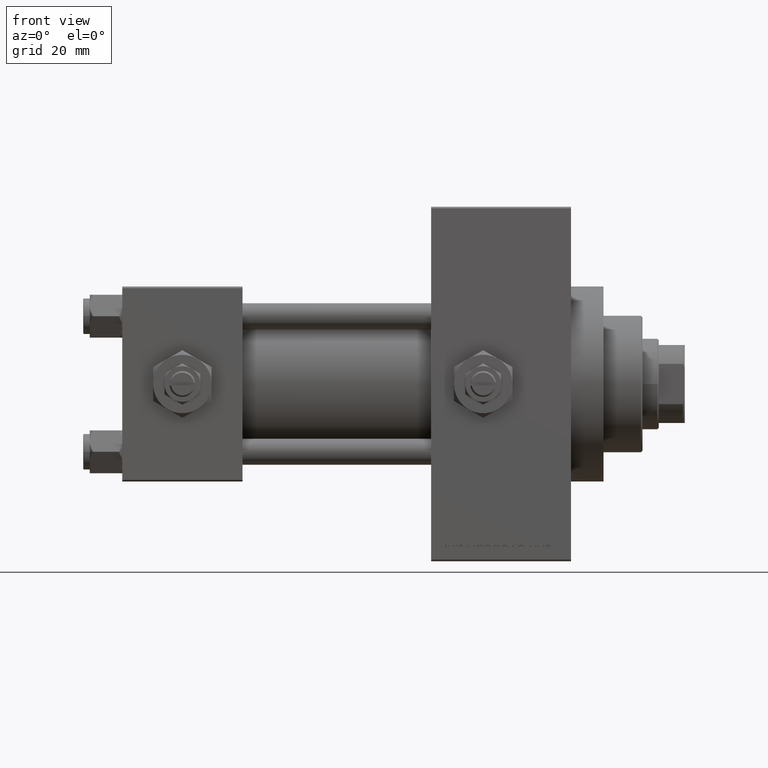
[diagram: clean part render]
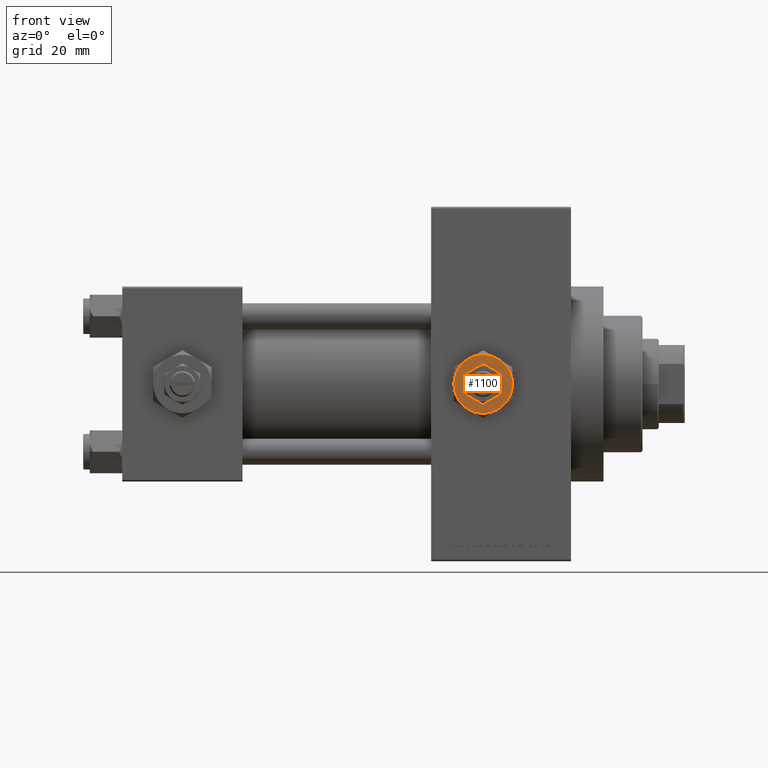
[diagram: same view with one face highlighted and labeled with its STEP entity id]
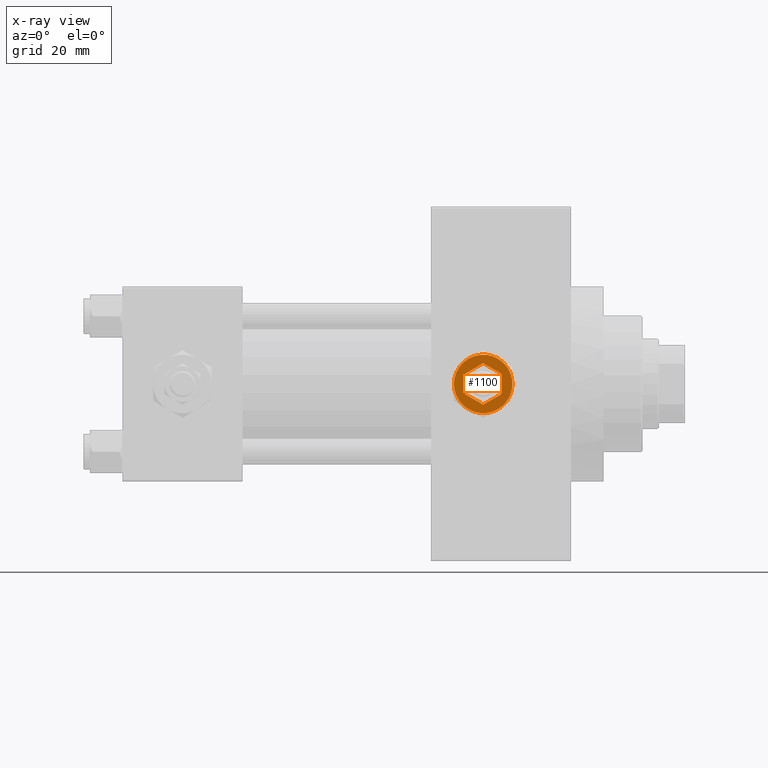
[diagram: x-ray of the same camera — body ghosted, the highlighted face saturated]
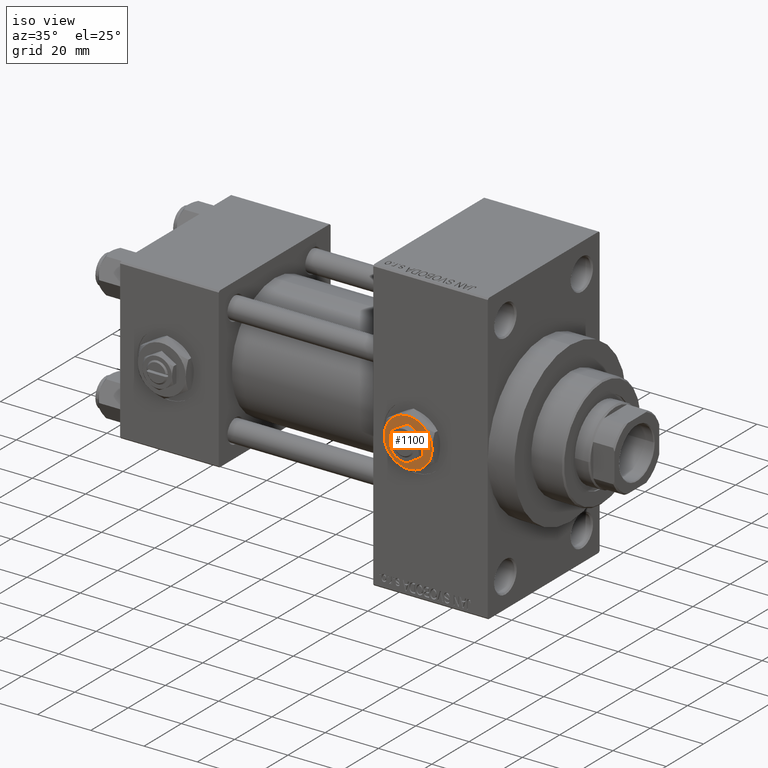
[diagram: same view with one face highlighted and labeled with its STEP entity id]
A machine part, front view. The second image highlights one B-rep face of the part: STEP entity #1100.
The next image is the same camera in x-ray: the body ghosted, the highlighted face saturated — about 0% of this face is hidden behind the body in this view.
A second angle (iso view) of the same face is appended — the face is thin or edge-on in the first view.
In plain terms, the highlighted planar face has unit normal (0, -1, -0).
Its self-contained STEP definition (entity closure, byte-faithful):
#337 = CARTESIAN_POINT ( 'NONE',  ( -4.499999999999998224, -7.794228634059947147, 4.299999999999999822 ) ) ;
#564 = DIRECTION ( 'NONE',  ( 0.000000000000000000, 0.000000000000000000, 1.000000000000000000 ) ) ;
#750 = DIRECTION ( 'NONE',  ( 0.000000000000000000, -1.000000000000000000, 0.000000000000000000 ) ) ;
#787 = CARTESIAN_POINT ( 'NONE',  ( 8.999999999999998224, 0.000000000000000000, 4.299999999999999822 ) ) ;
#1100 = ADVANCED_FACE ( 'NONE', ( #28352, #21622 ), #24615, .T. ) ;
#2686 = DIRECTION ( 'NONE',  ( -0.8660254037844385966, -0.4999999999999999445, 0.000000000000000000 ) ) ;
#3129 = CARTESIAN_POINT ( 'NONE',  ( 0.000000000000000000, 0.000000000000000000, 4.299999999999999822 ) ) ;
#3927 = CIRCLE ( 'NONE', #16676, 9.000000000000000000 ) ;
#4515 = VERTEX_POINT ( 'NONE', #38369 ) ;
#4597 = VECTOR ( 'NONE', #13150, 1000.000000000000000 ) ;
#5563 = VERTEX_POINT ( 'NONE', #787 ) ;
#6018 = VECTOR ( 'NONE', #17920, 1000.000000000000000 ) ;
#6700 = LINE ( 'NONE', #45320, #6018 ) ;
#6715 = CARTESIAN_POINT ( 'NONE',  ( 4.500000000000000000, 7.794228634059947147, 4.299999999999999822 ) ) ;
#7386 = EDGE_CURVE ( 'NONE', #48186, #18106, #47104, .T. ) ;
#7696 = DIRECTION ( 'NONE',  ( 0.000000000000000000, 0.000000000000000000, 1.000000000000000000 ) ) ;
#8359 = CARTESIAN_POINT ( 'NONE',  ( 0.000000000000000000, 0.000000000000000000, 4.299999999999999822 ) ) ;
#10091 = ORIENTED_EDGE ( 'NONE', *, *, #25588, .F. ) ;
#10894 = LINE ( 'NONE', #18395, #13516 ) ;
#11020 = CARTESIAN_POINT ( 'NONE',  ( 5.499999999999999112, 3.175426480542943075, 4.299999999999999822 ) ) ;
#11788 = DIRECTION ( 'NONE',  ( 1.000000000000000000, 0.000000000000000000, 0.000000000000000000 ) ) ;
#12030 = DIRECTION ( 'NONE',  ( 0.000000000000000000, 0.000000000000000000, 1.000000000000000000 ) ) ;
#12191 = DIRECTION ( 'NONE',  ( 1.000000000000000000, 0.000000000000000000, 0.000000000000000000 ) ) ;
#12818 = LINE ( 'NONE', #31253, #35946 ) ;
#13150 = DIRECTION ( 'NONE',  ( -2.731481088613017227E-16, 1.000000000000000000, 0.000000000000000000 ) ) ;
#13516 = VECTOR ( 'NONE', #2686, 1000.000000000000114 ) ;
#13565 = CARTESIAN_POINT ( 'NONE',  ( -5.500000000000000000, 3.175426480542941743, 4.299999999999999822 ) ) ;
#14125 = VECTOR ( 'NONE', #750, 1000.000000000000000 ) ;
#14228 = CIRCLE ( 'NONE', #22192, 9.000000000000000000 ) ;
#15638 = CIRCLE ( 'NONE', #45099, 9.000000000000000000 ) ;
#16252 = CARTESIAN_POINT ( 'NONE',  ( 0.000000000000000000, 0.000000000000000000, 4.299999999999999822 ) ) ;
#16507 = CARTESIAN_POINT ( 'NONE',  ( 0.000000000000000000, 6.350852961085883486, 4.299999999999999822 ) ) ;
#16676 = AXIS2_PLACEMENT_3D ( 'NONE', #42353, #7696, #12191 ) ;
#16782 = CARTESIAN_POINT ( 'NONE',  ( -9.000000000000000000, 0.000000000000000000, 4.299999999999999822 ) ) ;
#17646 = DIRECTION ( 'NONE',  ( 1.000000000000000000, 0.000000000000000000, 0.000000000000000000 ) ) ;
#17920 = DIRECTION ( 'NONE',  ( 0.8660254037844388186, 0.4999999999999997224, 0.000000000000000000 ) ) ;
#17951 = EDGE_CURVE ( 'NONE', #46904, #46488, #48174, .T. ) ;
#18106 = VERTEX_POINT ( 'NONE', #39152 ) ;
#18395 = CARTESIAN_POINT ( 'NONE',  ( 0.000000000000000000, 6.350852961085883486, 4.299999999999999822 ) ) ;
#19368 = DIRECTION ( 'NONE',  ( 0.000000000000000000, 0.000000000000000000, 1.000000000000000000 ) ) ;
#20972 = ORIENTED_EDGE ( 'NONE', *, *, #7386, .F. ) ;
#21370 = DIRECTION ( 'NONE',  ( 1.000000000000000000, 0.000000000000000000, -0.000000000000000000 ) ) ;
#21622 = FACE_BOUND ( 'NONE', #41366, .T. ) ;
#21624 = DIRECTION ( 'NONE',  ( 0.000000000000000000, 0.000000000000000000, 1.000000000000000000 ) ) ;
#22192 = AXIS2_PLACEMENT_3D ( 'NONE', #3129, #33770, #33526 ) ;
#22681 = ORIENTED_EDGE ( 'NONE', *, *, #17951, .F. ) ;
#23351 = VERTEX_POINT ( 'NONE', #6715 ) ;
#23485 = ORIENTED_EDGE ( 'NONE', *, *, #48841, .T. ) ;
#23528 = CARTESIAN_POINT ( 'NONE',  ( 4.499999999999997335, -7.794228634059948035, 4.299999999999999822 ) ) ;
#24615 = PLANE ( 'NONE',  #29921 ) ;
#25017 = ORIENTED_EDGE ( 'NONE', *, *, #38069, .T. ) ;
#25091 = ORIENTED_EDGE ( 'NONE', *, *, #33086, .F. ) ;
#25429 = EDGE_CURVE ( 'NONE', #37116, #5563, #3927, .T. ) ;
#25588 = EDGE_CURVE ( 'NONE', #46488, #48186, #10894, .T. ) ;
#25990 = CARTESIAN_POINT ( 'NONE',  ( 5.500000000000000888, -3.175426480542940855, 4.299999999999999822 ) ) ;
#26232 = DIRECTION ( 'NONE',  ( -0.8660254037844387076, 0.4999999999999999445, 0.000000000000000000 ) ) ;
#26922 = EDGE_CURVE ( 'NONE', #33516, #37116, #43828, .T. ) ;
#27314 = ORIENTED_EDGE ( 'NONE', *, *, #45316, .F. ) ;
#27415 = CARTESIAN_POINT ( 'NONE',  ( -5.500000000000000000, 3.175426480542941743, 4.299999999999999822 ) ) ;
#28352 = FACE_OUTER_BOUND ( 'NONE', #44910, .T. ) ;
#28590 = CARTESIAN_POINT ( 'NONE',  ( -1.343581385738006573E-15, -6.350852961085881709, 4.299999999999999822 ) ) ;
#28661 = CIRCLE ( 'NONE', #47759, 9.000000000000000000 ) ;
#29921 = AXIS2_PLACEMENT_3D ( 'NONE', #40560, #32081, #21370 ) ;
#31203 = VERTEX_POINT ( 'NONE', #16782 ) ;
#31253 = CARTESIAN_POINT ( 'NONE',  ( -5.500000000000000000, -3.175426480542942187, 4.299999999999999822 ) ) ;
#32081 = DIRECTION ( 'NONE',  ( 0.000000000000000000, 0.000000000000000000, 1.000000000000000000 ) ) ;
#32297 = VERTEX_POINT ( 'NONE', #28590 ) ;
#32574 = CARTESIAN_POINT ( 'NONE',  ( 0.000000000000000000, 0.000000000000000000, 4.299999999999999822 ) ) ;
#33086 = EDGE_CURVE ( 'NONE', #42276, #46904, #47059, .T. ) ;
#33516 = VERTEX_POINT ( 'NONE', #337 ) ;
#33526 = DIRECTION ( 'NONE',  ( 1.000000000000000000, 0.000000000000000000, 0.000000000000000000 ) ) ;
#33770 = DIRECTION ( 'NONE',  ( 0.000000000000000000, 0.000000000000000000, 1.000000000000000000 ) ) ;
#34385 = VECTOR ( 'NONE', #26232, 1000.000000000000000 ) ;
#34726 = CIRCLE ( 'NONE', #40328, 9.000000000000000000 ) ;
#34819 = ORIENTED_EDGE ( 'NONE', *, *, #49163, .F. ) ;
#35946 = VECTOR ( 'NONE', #42975, 1000.000000000000000 ) ;
#37116 = VERTEX_POINT ( 'NONE', #23528 ) ;
#37117 = CARTESIAN_POINT ( 'NONE',  ( 5.499999999999999112, 3.175426480542943075, 4.299999999999999822 ) ) ;
#37652 = ORIENTED_EDGE ( 'NONE', *, *, #40716, .T. ) ;
#38069 = EDGE_CURVE ( 'NONE', #23351, #4515, #14228, .T. ) ;
#38217 = CARTESIAN_POINT ( 'NONE',  ( 0.000000000000000000, 0.000000000000000000, 4.299999999999999822 ) ) ;
#38369 = CARTESIAN_POINT ( 'NONE',  ( -4.500000000000000000, 7.794228634059947147, 4.299999999999999822 ) ) ;
#38831 = CARTESIAN_POINT ( 'NONE',  ( 5.500000000000000888, -3.175426480542940855, 4.299999999999999822 ) ) ;
#39152 = CARTESIAN_POINT ( 'NONE',  ( -5.500000000000000000, -3.175426480542942187, 4.299999999999999822 ) ) ;
#39163 = ORIENTED_EDGE ( 'NONE', *, *, #25429, .T. ) ;
#40328 = AXIS2_PLACEMENT_3D ( 'NONE', #32574, #21624, #17646 ) ;
#40560 = CARTESIAN_POINT ( 'NONE',  ( 0.000000000000000000, 0.000000000000000000, 4.299999999999999822 ) ) ;
#40716 = EDGE_CURVE ( 'NONE', #5563, #23351, #28661, .T. ) ;
#41317 = ORIENTED_EDGE ( 'NONE', *, *, #47994, .T. ) ;
#41366 = EDGE_LOOP ( 'NONE', ( #10091, #22681, #25091, #34819, #27314, #20972 ) ) ;
#42276 = VERTEX_POINT ( 'NONE', #25990 ) ;
#42353 = CARTESIAN_POINT ( 'NONE',  ( 0.000000000000000000, 0.000000000000000000, 4.299999999999999822 ) ) ;
#42918 = DIRECTION ( 'NONE',  ( 1.000000000000000000, 0.000000000000000000, 0.000000000000000000 ) ) ;
#42975 = DIRECTION ( 'NONE',  ( 0.8660254037844387076, -0.4999999999999998890, 0.000000000000000000 ) ) ;
#43828 = CIRCLE ( 'NONE', #45421, 9.000000000000000000 ) ;
#44910 = EDGE_LOOP ( 'NONE', ( #39163, #37652, #25017, #41317, #23485, #45818 ) ) ;
#45099 = AXIS2_PLACEMENT_3D ( 'NONE', #16252, #12030, #42918 ) ;
#45316 = EDGE_CURVE ( 'NONE', #18106, #32297, #12818, .T. ) ;
#45320 = CARTESIAN_POINT ( 'NONE',  ( -1.343581385738006573E-15, -6.350852961085881709, 4.299999999999999822 ) ) ;
#45421 = AXIS2_PLACEMENT_3D ( 'NONE', #38217, #564, #11788 ) ;
#45818 = ORIENTED_EDGE ( 'NONE', *, *, #26922, .T. ) ;
#46488 = VERTEX_POINT ( 'NONE', #16507 ) ;
#46904 = VERTEX_POINT ( 'NONE', #37117 ) ;
#47059 = LINE ( 'NONE', #38831, #4597 ) ;
#47104 = LINE ( 'NONE', #27415, #14125 ) ;
#47759 = AXIS2_PLACEMENT_3D ( 'NONE', #8359, #19368, #49273 ) ;
#47994 = EDGE_CURVE ( 'NONE', #4515, #31203, #34726, .T. ) ;
#48174 = LINE ( 'NONE', #11020, #34385 ) ;
#48186 = VERTEX_POINT ( 'NONE', #13565 ) ;
#48841 = EDGE_CURVE ( 'NONE', #31203, #33516, #15638, .T. ) ;
#49163 = EDGE_CURVE ( 'NONE', #32297, #42276, #6700, .T. ) ;
#49273 = DIRECTION ( 'NONE',  ( 1.000000000000000000, 0.000000000000000000, 0.000000000000000000 ) ) ;